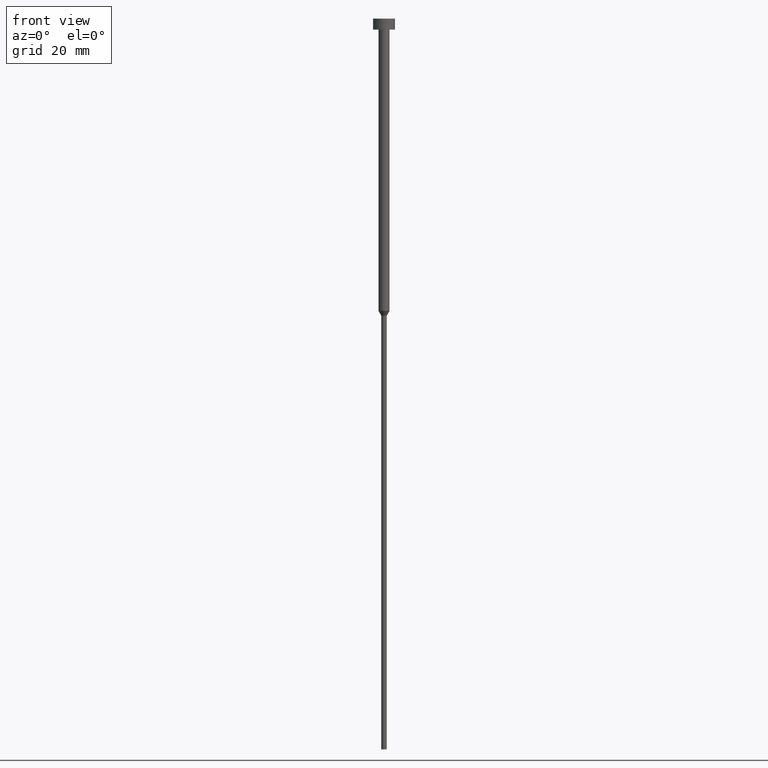
[diagram: clean part render]
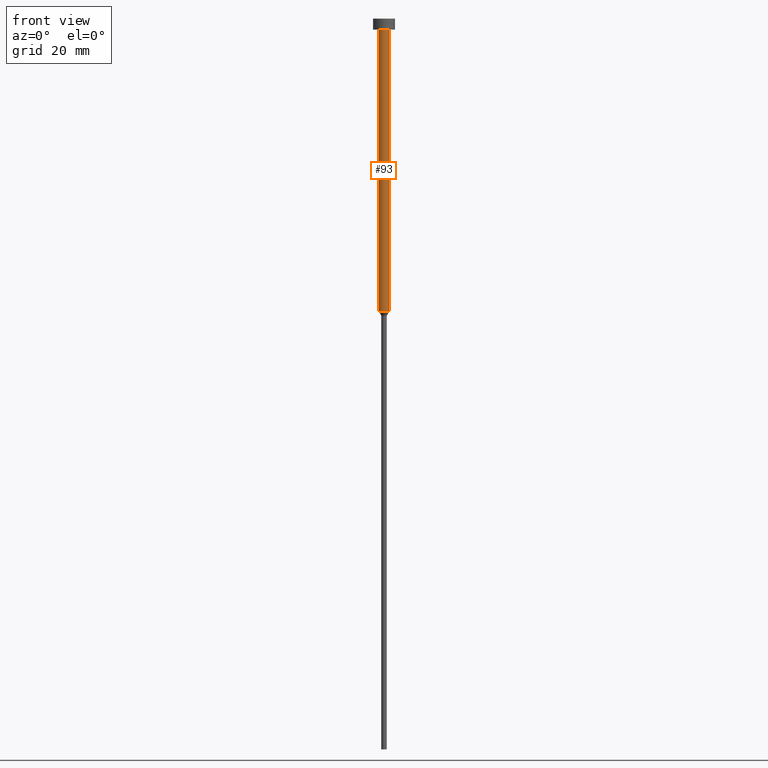
[diagram: same view with one face highlighted and labeled with its STEP entity id]
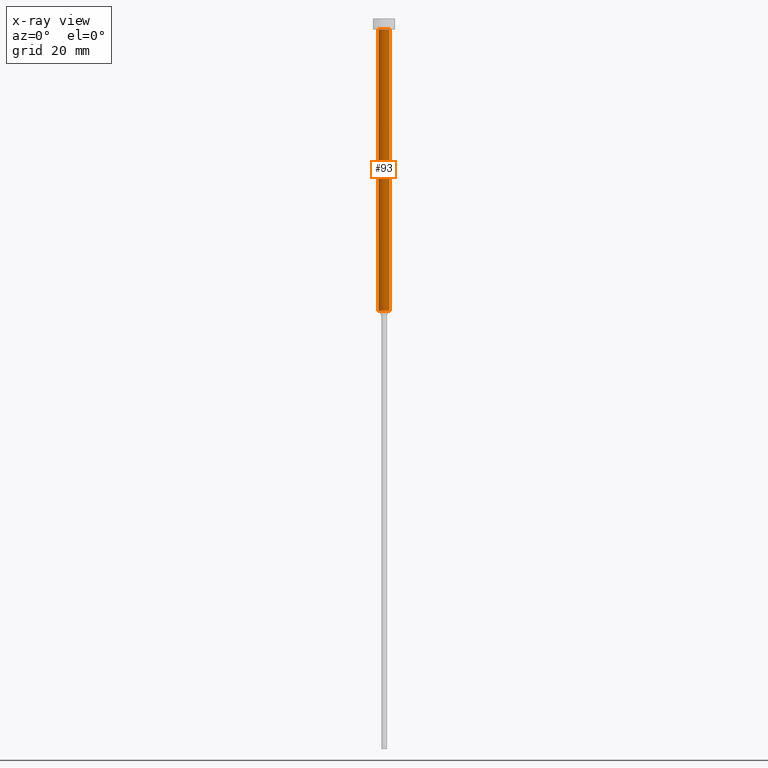
[diagram: x-ray of the same camera — body ghosted, the highlighted face saturated]
A machine part, front view. The second image highlights one B-rep face of the part: STEP entity #93.
The next image is the same camera in x-ray: the body ghosted, the highlighted face saturated — about 0% of this face is hidden behind the body in this view.
In plain terms, the highlighted cylindrical surface (edge-blend (fillet) strip) has radius 1.5 mm, axis along (-0, -0, 1).
Its self-contained STEP definition (entity closure, byte-faithful):
#5 = EDGE_LOOP ( 'NONE', ( #310, #12, #255, #161 ) ) ;
#11 = CARTESIAN_POINT ( 'NONE',  ( -1.500000000000000000, 1.836970198721029934E-16, -80.00000000000000000 ) ) ;
#12 = ORIENTED_EDGE ( 'NONE', *, *, #45, .T. ) ;
#16 = DIRECTION ( 'NONE',  ( 1.000000000000000000, 0.000000000000000000, 0.000000000000000000 ) ) ;
#34 = CARTESIAN_POINT ( 'NONE',  ( 1.500000000000000000, 0.000000000000000000, -80.00000000000000000 ) ) ;
#45 = EDGE_CURVE ( 'NONE', #71, #206, #166, .T. ) ;
#48 = CARTESIAN_POINT ( 'NONE',  ( 0.000000000000000000, 0.000000000000000000, -3.000000000000000888 ) ) ;
#52 = DIRECTION ( 'NONE',  ( -0.000000000000000000, -0.000000000000000000, 1.000000000000000000 ) ) ;
#63 = VECTOR ( 'NONE', #52, 1000.000000000000000 ) ;
#66 = CARTESIAN_POINT ( 'NONE',  ( -1.500000000000000000, 1.836970198721029934E-16, 0.000000000000000000 ) ) ;
#71 = VERTEX_POINT ( 'NONE', #11 ) ;
#76 = CYLINDRICAL_SURFACE ( 'NONE', #346, 1.500000000000000000 ) ;
#80 = DIRECTION ( 'NONE',  ( 1.000000000000000000, 0.000000000000000000, 0.000000000000000000 ) ) ;
#93 = ADVANCED_FACE ( 'NONE', ( #314 ), #76, .T. ) ;
#107 = DIRECTION ( 'NONE',  ( -0.000000000000000000, -0.000000000000000000, 1.000000000000000000 ) ) ;
#118 = LINE ( 'NONE', #141, #63 ) ;
#141 = CARTESIAN_POINT ( 'NONE',  ( 1.500000000000000000, 0.000000000000000000, 0.000000000000000000 ) ) ;
#145 = DIRECTION ( 'NONE',  ( -0.000000000000000000, -0.000000000000000000, 1.000000000000000000 ) ) ;
#150 = DIRECTION ( 'NONE',  ( -0.000000000000000000, -0.000000000000000000, 1.000000000000000000 ) ) ;
#152 = CARTESIAN_POINT ( 'NONE',  ( -1.500000000000000000, 1.836970198721029934E-16, -3.000000000000000888 ) ) ;
#154 = EDGE_CURVE ( 'NONE', #71, #155, #217, .T. ) ;
#155 = VERTEX_POINT ( 'NONE', #152 ) ;
#161 = ORIENTED_EDGE ( 'NONE', *, *, #312, .F. ) ;
#166 = CIRCLE ( 'NONE', #224, 1.500000000000000000 ) ;
#171 = CARTESIAN_POINT ( 'NONE',  ( 0.000000000000000000, 0.000000000000000000, -80.00000000000000000 ) ) ;
#179 = CARTESIAN_POINT ( 'NONE',  ( 0.000000000000000000, 0.000000000000000000, 0.000000000000000000 ) ) ;
#187 = DIRECTION ( 'NONE',  ( -0.000000000000000000, -0.000000000000000000, 1.000000000000000000 ) ) ;
#199 = VECTOR ( 'NONE', #145, 1000.000000000000000 ) ;
#206 = VERTEX_POINT ( 'NONE', #34 ) ;
#217 = LINE ( 'NONE', #66, #199 ) ;
#222 = AXIS2_PLACEMENT_3D ( 'NONE', #48, #187, #16 ) ;
#224 = AXIS2_PLACEMENT_3D ( 'NONE', #171, #150, #249 ) ;
#246 = VERTEX_POINT ( 'NONE', #269 ) ;
#249 = DIRECTION ( 'NONE',  ( 1.000000000000000000, 0.000000000000000000, 0.000000000000000000 ) ) ;
#255 = ORIENTED_EDGE ( 'NONE', *, *, #265, .T. ) ;
#265 = EDGE_CURVE ( 'NONE', #206, #246, #118, .T. ) ;
#269 = CARTESIAN_POINT ( 'NONE',  ( 1.500000000000000000, 0.000000000000000000, -3.000000000000000888 ) ) ;
#310 = ORIENTED_EDGE ( 'NONE', *, *, #154, .F. ) ;
#312 = EDGE_CURVE ( 'NONE', #155, #246, #350, .T. ) ;
#314 = FACE_OUTER_BOUND ( 'NONE', #5, .T. ) ;
#346 = AXIS2_PLACEMENT_3D ( 'NONE', #179, #107, #80 ) ;
#350 = CIRCLE ( 'NONE', #222, 1.500000000000000000 ) ;